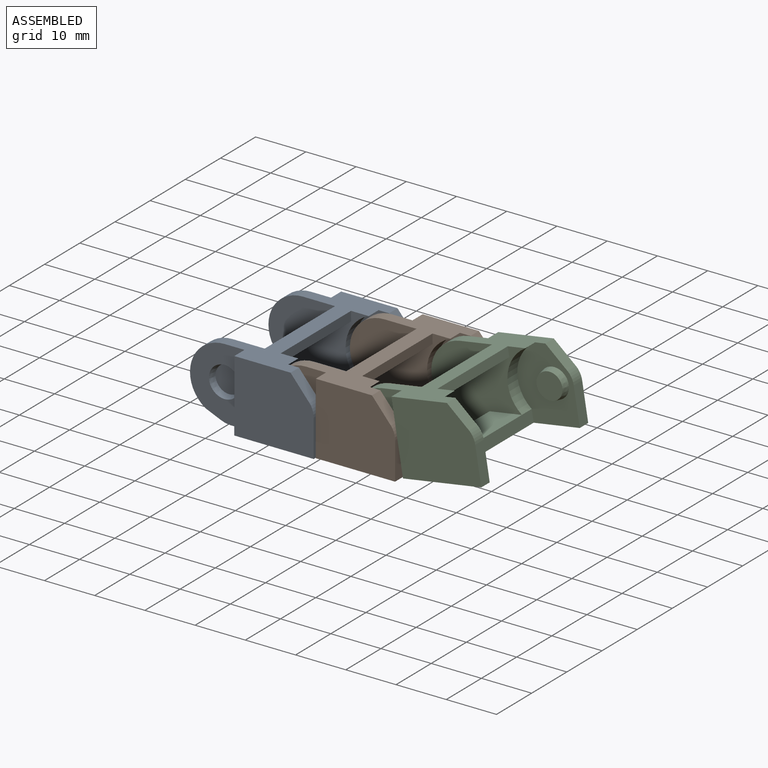
[diagram: assembled view]
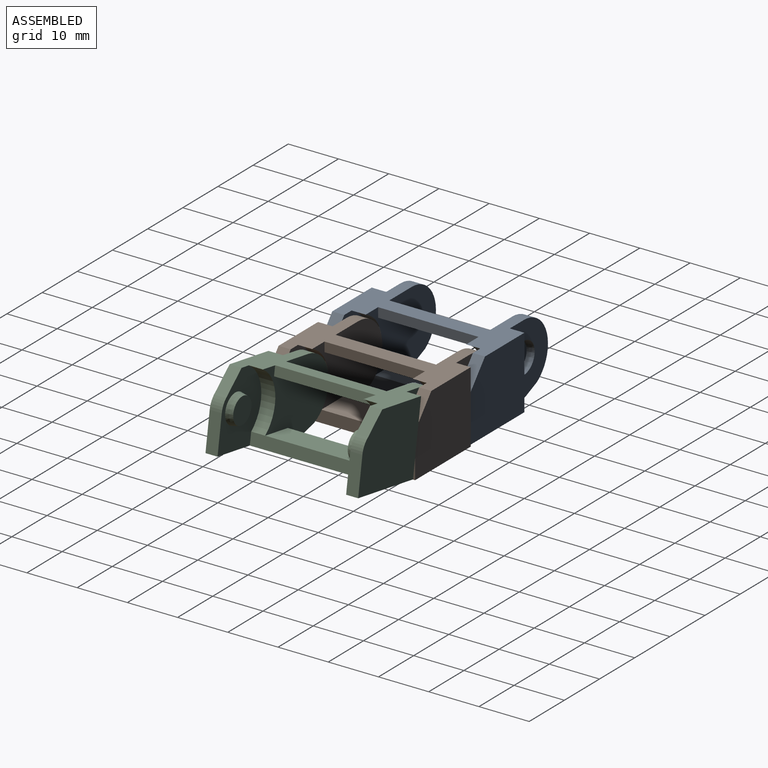
[diagram: assembled view, second angle]
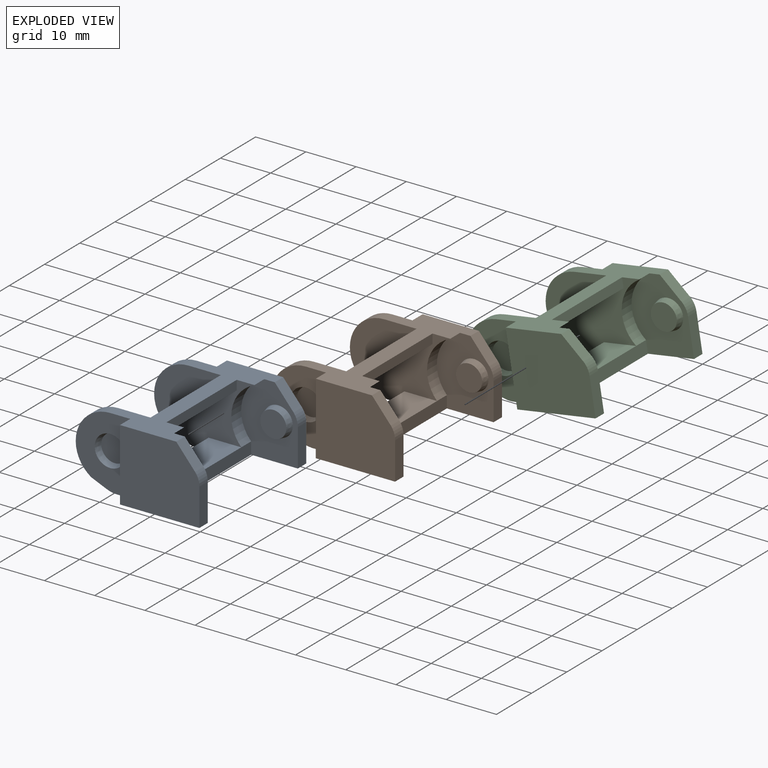
[diagram: exploded view]
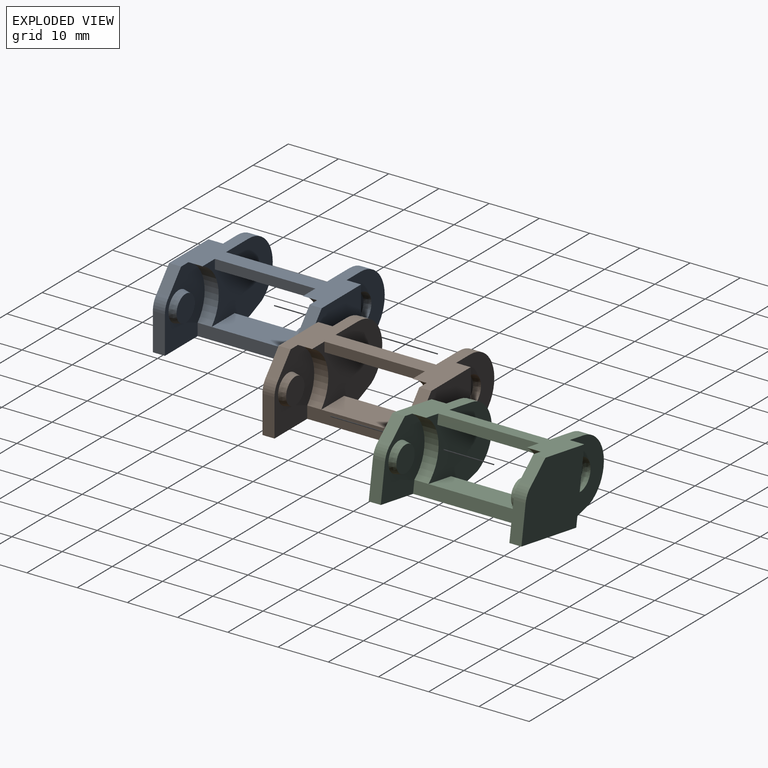
[diagram: exploded view, second angle]
ASSEMBLY  parts=3 mates=2
PART A: 40 faces, bbox 26.7x30.4x14.3 mm
  f0: plane 19.97x14.3mm, normal (0,1,0), area 190.4mm2, adj f1,f2,f3,f4,f15,f18,f19,f20
  f1: plane 3.12x2.3mm, normal (-0.39,0,-0.92), area 7.8mm2, adj f0,f4,f10,f39
  f2: plane 30.4x18.48mm, normal (0,0,-1), area 254.6mm2, adj f0,f5,f6,f9,f10,f13,f14,f19
  f3: plane 30.4x15.2mm, normal (0,0,1), area 186.8mm2, adj f0,f4,f5,f8,f9,f10,f14,f15
  f4: cylinder r=6.85mm len=12.58mm, axis (0,1,0), area 40.4mm2, adj f0,f1,f3,f10
  f5: plane 15.8x14.3mm, normal (0,-1,0), area 213.2mm2, adj f2,f3,f6,f7,f8,f9
  f6: plane 7.45x2.4mm, normal (1,0,0), area 17.9mm2, adj f2,f5,f7,f14
  f7: cylinder r=3.9mm len=2.8mm, axis (0,1,0), area 7.5mm2, adj f5,f6,f8,f14
  f8: plane 4.05x3.41mm, normal (0.76,0,0.64), area 12.7mm2, adj f3,f5,f7,f14
  f9: plane 14.3x2.9mm, normal (-1,0,0), area 41.5mm2, adj f2,f3,f5,f10
  f10: plane 14.3x10.85mm, normal (0,-1,0), area 101.4mm2, adj f1,f2,f3,f4,f9,f11,f39
  f11: cone r=3.15mm half-angle=15deg, axis (0,-1,0), area 25.4mm2, adj f10,f12
  f12: plane 5.42x5.42mm, normal (0,-1,0), area 23mm2, adj f11
  f13: plane 25.6x2.4mm, normal (1,0,0), area 61.4mm2, adj f2,f14,f15,f18,f34,f35
  f14: plane 14.3x11.29mm, normal (0,1,0), area 105.7mm2, adj f2,f3,f6,f7,f8,f13,f15,f17
  f15: cylinder r=7.39mm len=11.9mm, axis (0,-1,0), area 40.1mm2, adj f0,f3,f13,f14
  f16: plane 5.2x5.2mm, normal (0,1,0), area 21.2mm2, adj f17
  f17: cone r=2.6mm half-angle=12deg, axis (0,-1,0), area 24.7mm2, adj f14,f16
  f18: plane 20x6.5mm, normal (0,0,1), area 130mm2, adj f0,f13,f19,f23
  f19: plane 20x2.4mm, normal (-1,0,0), area 48mm2, adj f0,f2,f18,f23
  f20: plane 20x1.9mm, normal (-1,0,0), area 38mm2, adj f0,f3,f21,f23
  f21: plane 20x3.18mm, normal (0,0,-1), area 63.6mm2, adj f0,f20,f22,f23
  f22: plane 20x1.9mm, normal (1,0,0), area 38mm2, adj f0,f3,f21,f23
  f23: plane 19.97x14.3mm, normal (0,-1,0), area 190.4mm2, adj f2,f3,f18,f19,f20,f21,f22,f24
  f24: plane 3.12x2.3mm, normal (-0.39,0,-0.92), area 7.8mm2, adj f23,f25,f31,f38
  f25: cylinder r=6.85mm len=12.58mm, axis (0,-1,0), area 40.4mm2, adj f3,f23,f24,f31
  f26: plane 15.8x14.3mm, normal (0,1,0), area 213.2mm2, adj f2,f3,f27,f28,f29,f30
  f27: plane 7.45x2.4mm, normal (1,0,0), area 17.9mm2, adj f2,f26,f28,f34
  f28: cylinder r=3.9mm len=2.8mm, axis (0,-1,0), area 7.5mm2, adj f26,f27,f29,f34
  f29: plane 4.05x3.41mm, normal (0.76,0,0.64), area 12.7mm2, adj f3,f26,f28,f34
  f30: plane 14.3x2.9mm, normal (-1,0,0), area 41.5mm2, adj f2,f3,f26,f31
  f31: plane 14.3x10.85mm, normal (0,1,0), area 101.4mm2, adj f2,f3,f24,f25,f30,f32,f38
  f32: cone r=3.15mm half-angle=15deg, axis (0,1,0), area 25.4mm2, adj f31,f33
  f33: plane 5.42x5.42mm, normal (0,1,0), area 23mm2, adj f32
  f34: plane 14.3x11.29mm, normal (0,-1,0), area 105.7mm2, adj f2,f3,f13,f27,f28,f29,f35,f37
  f35: cylinder r=7.39mm len=11.9mm, axis (0,1,0), area 40.1mm2, adj f3,f13,f23,f34
  f36: plane 5.2x5.2mm, normal (0,-1,0), area 21.2mm2, adj f37
  f37: cone r=2.6mm half-angle=12deg, axis (0,1,0), area 24.7mm2, adj f34,f36
  f38: cylinder r=5mm len=2.3mm, axis (0,-1,0), area 4.6mm2, adj f2,f23,f24,f31
  f39: cylinder r=5mm len=2.3mm, axis (0,1,0), area 4.6mm2, adj f0,f1,f2,f10
PART B: same geometry as A
PART C: same geometry as A
PLACE A t=(-21.17,-15.6,-1.74)mm fixed
PLACE B rot(axis=(0,1,0),0deg) t=(-5.27,-15.15,-1.74)mm
PLACE C rot(axis=(0,-1,0),9.3deg) t=(10.52,-14.7,-0.4)mm
MATE revolute B.f11 <-> A.f17  axis (0,1,0) through (-13.57,8.4,-1.74)mm
MATE revolute C.f11 <-> B.f17  axis (0,1,0) through (2.33,8.85,-1.74)mm
